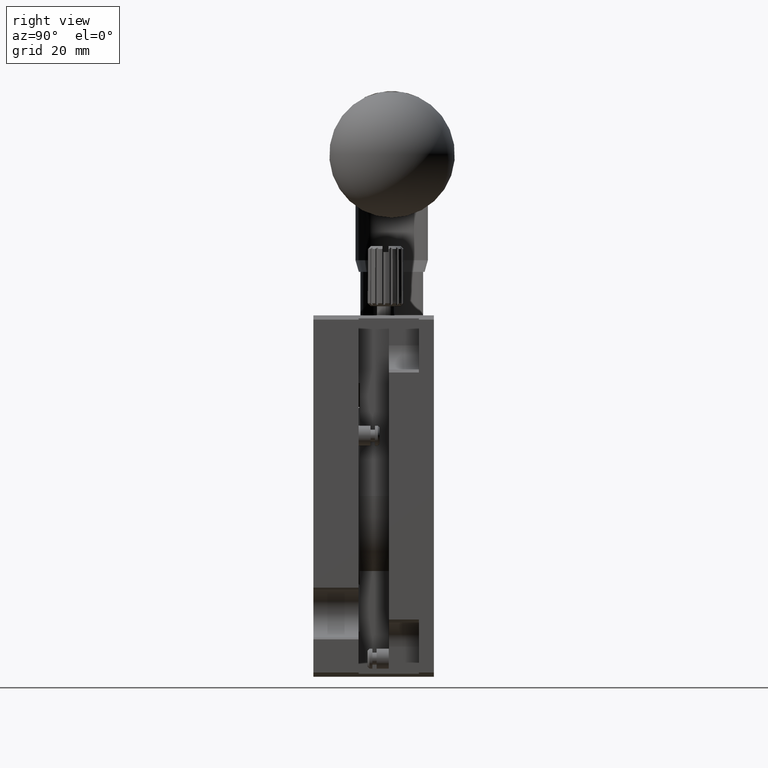
[diagram: clean part render]
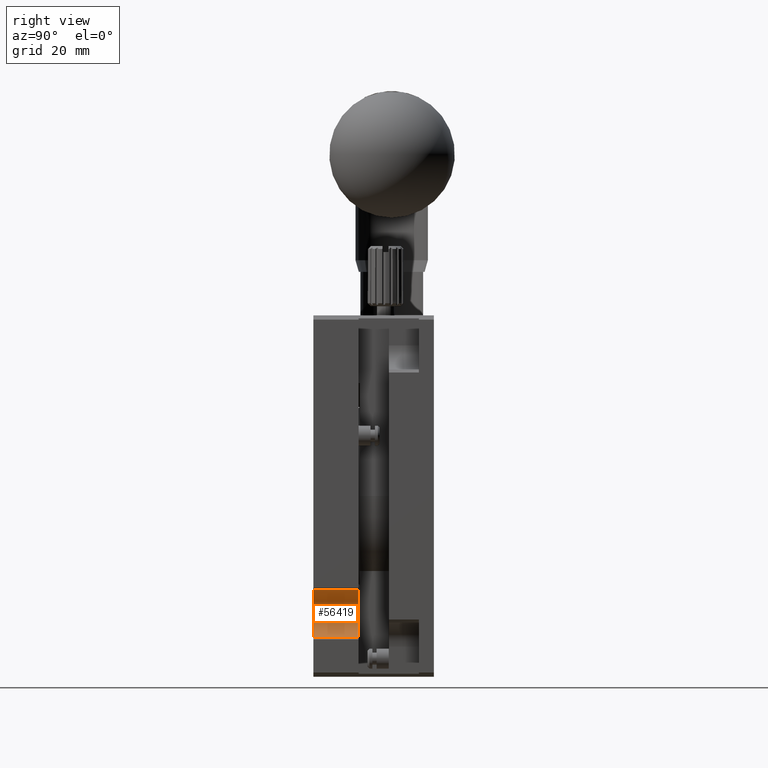
[diagram: same view with one face highlighted and labeled with its STEP entity id]
A machine part, right view. The second image highlights one B-rep face of the part: STEP entity #56419.
In plain terms, the highlighted cylindrical surface (edge-blend (fillet) strip) has radius 4 mm, axis along (0, -1, 0).
Its self-contained STEP definition (entity closure, byte-faithful):
#1500 = AXIS2_PLACEMENT_3D ( 'NONE', #44404, #4473, #4910 ) ;
#4473 = DIRECTION ( 'NONE',  ( 0.000000000000000000, -1.000000000000000000, 0.000000000000000000 ) ) ;
#4910 = DIRECTION ( 'NONE',  ( 0.000000000000000000, 0.000000000000000000, -1.000000000000000000 ) ) ;
#8720 = ORIENTED_EDGE ( 'NONE', *, *, #69022, .F. ) ;
#9587 = DIRECTION ( 'NONE',  ( -0.000000000000000000, 1.000000000000000000, -0.000000000000000000 ) ) ;
#11686 = AXIS2_PLACEMENT_3D ( 'NONE', #79641, #53637, #85716 ) ;
#12667 = ORIENTED_EDGE ( 'NONE', *, *, #22702, .F. ) ;
#12824 = FACE_OUTER_BOUND ( 'NONE', #60374, .T. ) ;
#14937 = CARTESIAN_POINT ( 'NONE',  ( 59.70000000000001705, 0.000000000000000000, -53.48800000000000665 ) ) ;
#14997 = CARTESIAN_POINT ( 'NONE',  ( 60.00309693169000269, 7.500000000000000000, -49.49950000000000472 ) ) ;
#15803 = CARTESIAN_POINT ( 'NONE',  ( 59.70000000000910489, 0.000000000000000000, -45.51099999999929935 ) ) ;
#17884 = AXIS2_PLACEMENT_3D ( 'NONE', #14997, #80541, #41499 ) ;
#18165 = VECTOR ( 'NONE', #9587, 1000.000000000000000 ) ;
#22153 = CARTESIAN_POINT ( 'NONE',  ( 59.70000000000001705, 7.500000000000000000, -53.48800000000000665 ) ) ;
#22702 = EDGE_CURVE ( 'NONE', #32796, #76565, #44267, .T. ) ;
#26350 = CIRCLE ( 'NONE', #1500, 4.000000000000003553 ) ;
#29580 = VERTEX_POINT ( 'NONE', #14937 ) ;
#31058 = DIRECTION ( 'NONE',  ( 0.000000000000000000, -1.000000000000000000, 0.000000000000000000 ) ) ;
#32796 = VERTEX_POINT ( 'NONE', #61739 ) ;
#33189 = CYLINDRICAL_SURFACE ( 'NONE', #11686, 4.000000000000003553 ) ;
#41499 = DIRECTION ( 'NONE',  ( 0.000000000000000000, 0.000000000000000000, -1.000000000000000000 ) ) ;
#44267 = CIRCLE ( 'NONE', #17884, 4.000000000000003553 ) ;
#44404 = CARTESIAN_POINT ( 'NONE',  ( 60.00309693169000269, 0.000000000000000000, -49.49950000000000472 ) ) ;
#45252 = VERTEX_POINT ( 'NONE', #15803 ) ;
#53637 = DIRECTION ( 'NONE',  ( 0.000000000000000000, -1.000000000000000000, 0.000000000000000000 ) ) ;
#56419 = ADVANCED_FACE ( 'NONE', ( #12824 ), #33189, .F. ) ;
#60374 = EDGE_LOOP ( 'NONE', ( #8720, #12667, #79570, #76138 ) ) ;
#61739 = CARTESIAN_POINT ( 'NONE',  ( 59.70000000000910489, 7.500000000000000000, -45.51099999999929935 ) ) ;
#62801 = CARTESIAN_POINT ( 'NONE',  ( 59.70000000000000284, 7.500000000000000000, -53.48800000000001376 ) ) ;
#69022 = EDGE_CURVE ( 'NONE', #76565, #29580, #76230, .T. ) ;
#69454 = CARTESIAN_POINT ( 'NONE',  ( 59.70000000000850093, 7.500000000000000000, -45.51099999999934198 ) ) ;
#70313 = LINE ( 'NONE', #69454, #18165 ) ;
#76138 = ORIENTED_EDGE ( 'NONE', *, *, #78969, .T. ) ;
#76230 = LINE ( 'NONE', #62801, #84263 ) ;
#76565 = VERTEX_POINT ( 'NONE', #22153 ) ;
#78969 = EDGE_CURVE ( 'NONE', #45252, #29580, #26350, .T. ) ;
#79570 = ORIENTED_EDGE ( 'NONE', *, *, #82992, .F. ) ;
#79641 = CARTESIAN_POINT ( 'NONE',  ( 60.00309693169000269, 7.500000000000000000, -49.49950000000000472 ) ) ;
#80541 = DIRECTION ( 'NONE',  ( 0.000000000000000000, -1.000000000000000000, 0.000000000000000000 ) ) ;
#82992 = EDGE_CURVE ( 'NONE', #45252, #32796, #70313, .T. ) ;
#84263 = VECTOR ( 'NONE', #31058, 1000.000000000000000 ) ;
#85716 = DIRECTION ( 'NONE',  ( 0.000000000000000000, 0.000000000000000000, -1.000000000000000000 ) ) ;